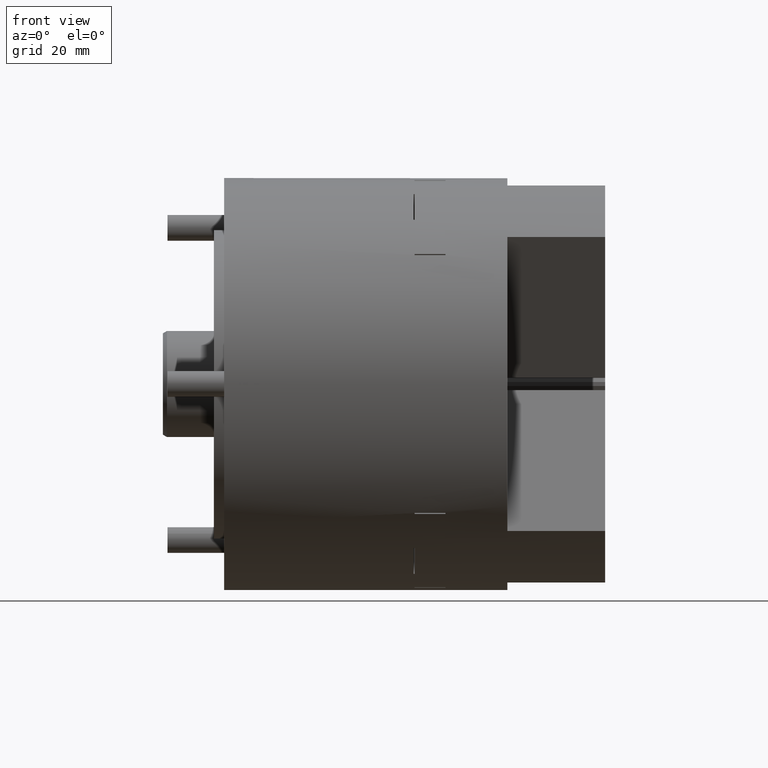
[diagram: clean part render]
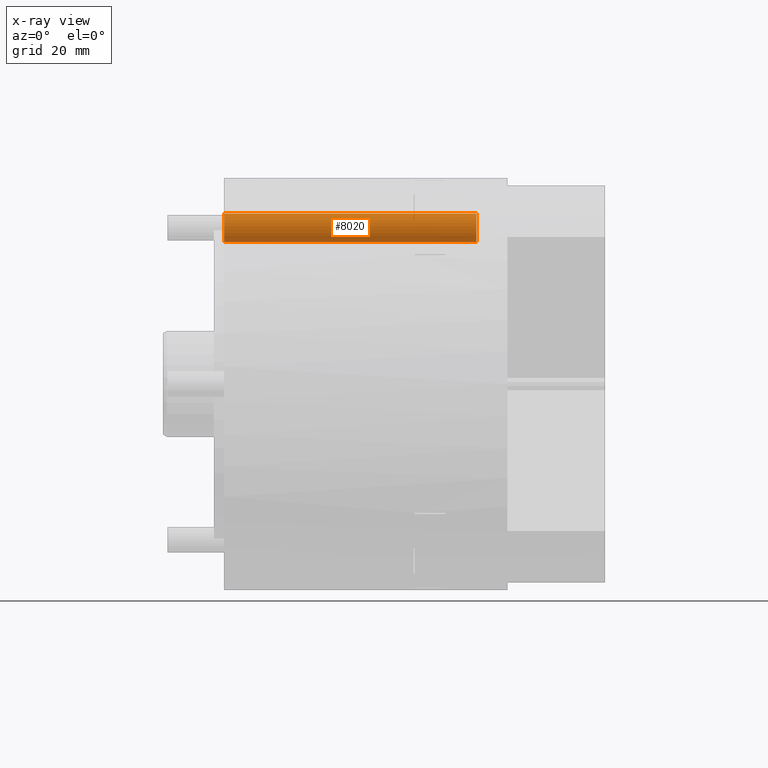
[diagram: x-ray — body ghosted, one internal face saturated and labeled with its STEP entity id]
A machine part, front view, then the same camera in x-ray: the body is ghosted and one INTERNAL B-rep face — a face not visible from any outside direction — is saturated and labeled: STEP entity #8020.
In plain terms, the highlighted cylindrical surface (bore or boss wall) has radius 2.75 mm, axis along (-1, 0, 0).
Its self-contained STEP definition (entity closure, byte-faithful):
#155=CYLINDRICAL_SURFACE('',#8773,2.75);
#305=CIRCLE('',#8451,2.75);
#376=CIRCLE('',#8616,2.75);
#2199=ORIENTED_EDGE('',*,*,#3328,.T.);
#2200=ORIENTED_EDGE('',*,*,#3023,.F.);
#3023=EDGE_CURVE('',#3978,#3978,#305,.T.);
#3328=EDGE_CURVE('',#4202,#4202,#376,.T.);
#3978=VERTEX_POINT('',#12216);
#4202=VERTEX_POINT('',#12925);
#6286=EDGE_LOOP('',(#2199));
#6287=EDGE_LOOP('',(#2200));
#7025=FACE_BOUND('',#6286,.T.);
#7026=FACE_BOUND('',#6287,.T.);
#8020=ADVANCED_FACE('',(#7025,#7026),#155,.F.);
#8451=AXIS2_PLACEMENT_3D('',#12215,#9793,#9794);
#8616=AXIS2_PLACEMENT_3D('',#12924,#10334,#10335);
#8773=AXIS2_PLACEMENT_3D('',#13323,#10764,#10765);
#9793=DIRECTION('',(-1.,0.,0.));
#9794=DIRECTION('',(0.,0.,1.));
#10334=DIRECTION('',(-1.,0.,0.));
#10335=DIRECTION('',(0.,0.,1.));
#10764=DIRECTION('',(-1.,0.,0.));
#10765=DIRECTION('',(0.,0.,1.));
#12215=CARTESIAN_POINT('',(-6.00000000000001,17.5000000000004,30.3108891324551));
#12216=CARTESIAN_POINT('',(-6.00000000000001,17.5000000000004,33.0608891324551));
#12924=CARTESIAN_POINT('',(-55.,17.5000000000004,30.3108891324552));
#12925=CARTESIAN_POINT('',(-55.,17.5000000000004,33.0608891324551));
#13323=CARTESIAN_POINT('',(-55.,17.5000000000004,30.3108891324552));